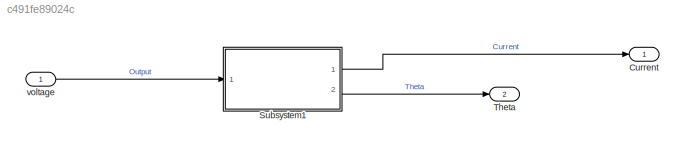
MODEL slx_c491fe89024c
KIND model
CONFIG AbsTol = auto
CONFIG EnableMultiTasking = off
CONFIG FixedStep = auto
CONFIG MaxStep = auto
CONFIG MinStep = auto
CONFIG RelTol = 1e-3
CONFIG SampleTimeConstraint = Unconstrained
CONFIG SolverName = VariableStepAuto
CONFIG StartTime = 0.0
CONFIG StopTime = 10.0
BLOCK [Outport] Current
  OutDataTypeStr = double
  PortDimensions = 1
  SampleTime = 0
  SamplingMode = Sample based
  SignalType = real
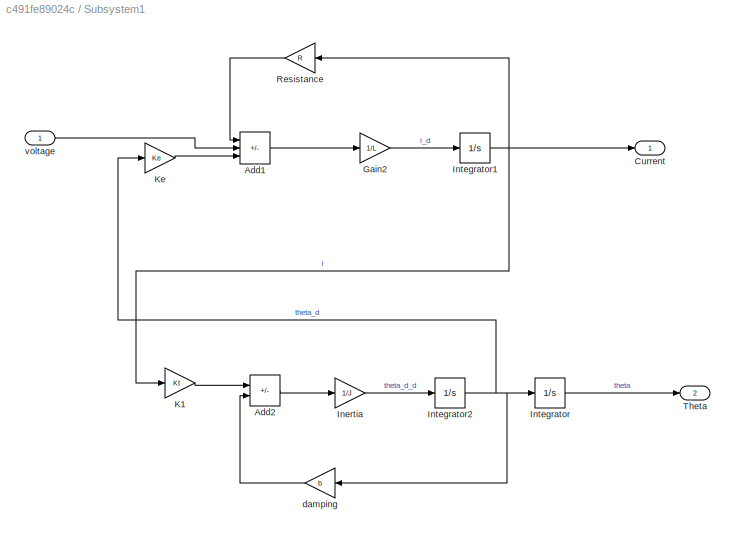
BLOCK [SubSystem] Subsystem1
  Ports = [1, 2]
  RequestExecContextInheritance = off
BLOCK [Sum] Subsystem1/Add1
  IconShape = rectangular
  Inputs = -+-
  Ports = [3, 1]
BLOCK [Sum] Subsystem1/Add2
  IconShape = rectangular
  Inputs = +-
  Ports = [2, 1]
BLOCK [Outport] Subsystem1/Current
BLOCK [Gain] Subsystem1/Gain2
  Gain = 1/L
BLOCK [Gain] Subsystem1/Inertia
  Gain = 1/J
BLOCK [Integrator] Subsystem1/Integrator
  Ports = [1, 1]
BLOCK [Integrator] Subsystem1/Integrator1
  Ports = [1, 1]
BLOCK [Integrator] Subsystem1/Integrator2
  Ports = [1, 1]
BLOCK [Gain] Subsystem1/K1
  Gain = Kt
BLOCK [Gain] Subsystem1/Ke
  Gain = Ke
BLOCK [Gain] Subsystem1/Resistance
  Gain = R
BLOCK [Outport] Subsystem1/Theta
  Port = 2
BLOCK [Gain] Subsystem1/damping
  Gain = b
BLOCK [Inport] Subsystem1/voltage
BLOCK [Outport] Theta
  OutDataTypeStr = double
  Port = 2
  PortDimensions = 1
  SampleTime = 0
  SamplingMode = Sample based
  SignalType = real
BLOCK [Inport] voltage
  OutDataTypeStr = double
  PortDimensions = 1
  SampleTime = 0
  SamplingMode = Sample based
  SignalType = real
LINE Subsystem1/Add1:1 -> Subsystem1/Gain2:1
LINE Subsystem1/Add2:1 -> Subsystem1/Inertia:1
LINE Subsystem1/Gain2:1 -> Subsystem1/Integrator1:1
LINE Subsystem1/Inertia:1 -> Subsystem1/Integrator2:1
NET Subsystem1/Integrator1:1 -> Subsystem1/Current:1, Subsystem1/K1:1, Subsystem1/Resistance:1
NET Subsystem1/Integrator2:1 -> Subsystem1/Integrator:1, Subsystem1/Ke:1, Subsystem1/damping:1
LINE Subsystem1/Integrator:1 -> Subsystem1/Theta:1
LINE Subsystem1/K1:1 -> Subsystem1/Add2:1
LINE Subsystem1/Ke:1 -> Subsystem1/Add1:3
LINE Subsystem1/Resistance:1 -> Subsystem1/Add1:1
LINE Subsystem1/damping:1 -> Subsystem1/Add2:2
LINE Subsystem1/voltage:1 -> Subsystem1/Add1:2
LINE Subsystem1:1 -> Current:1
LINE Subsystem1:2 -> Theta:1
LINE voltage:1 -> Subsystem1:1
note: NET lines group one-source signal fan-out (src -> all destinations, sorted); 1:1 wires keep LINE
